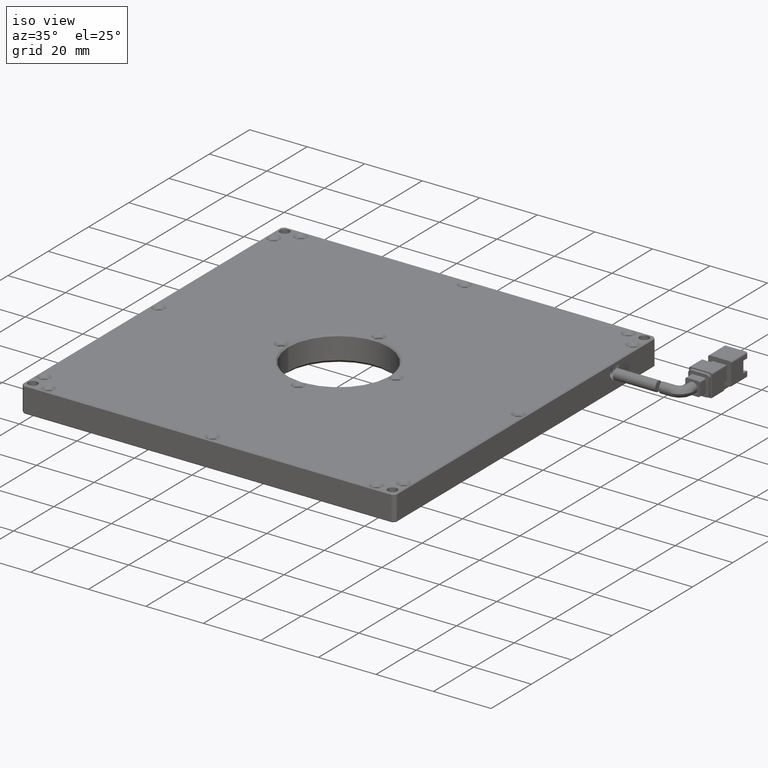
[diagram: clean part render]
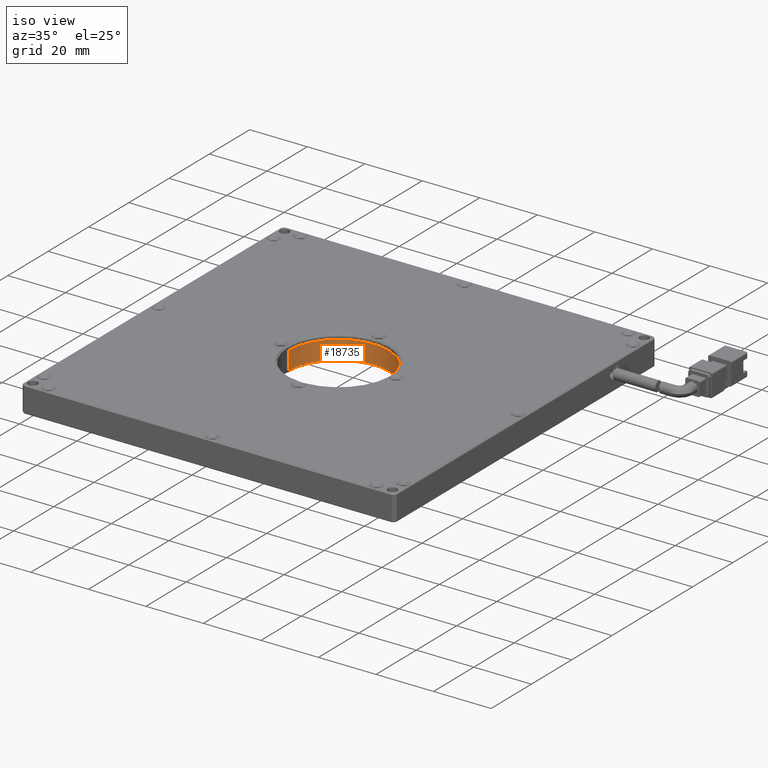
[diagram: same view with one face highlighted and labeled with its STEP entity id]
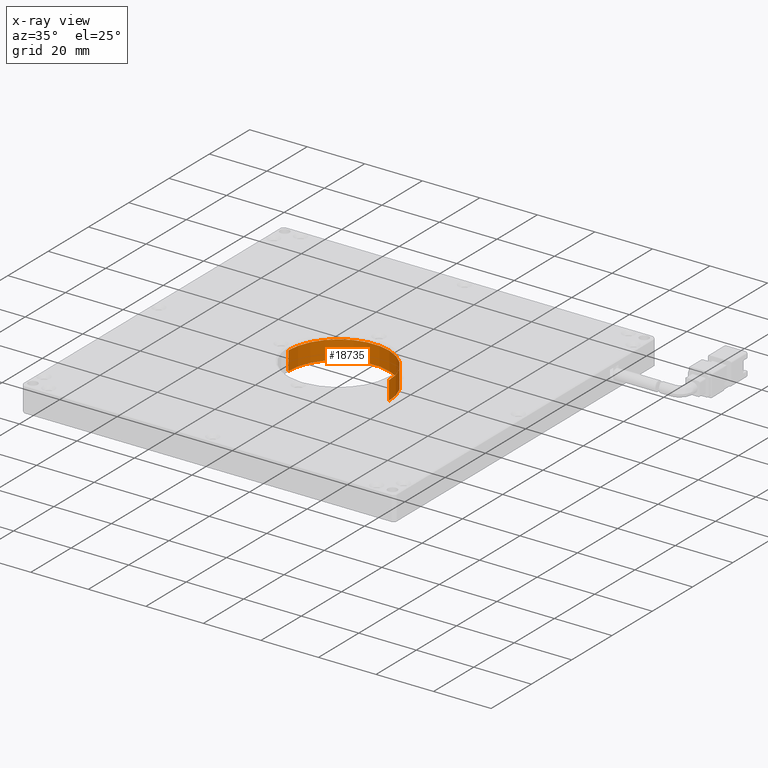
[diagram: x-ray of the same camera — body ghosted, the highlighted face saturated]
A machine part, iso view. The second image highlights one B-rep face of the part: STEP entity #18735.
The next image is the same camera in x-ray: the body ghosted, the highlighted face saturated — about 0% of this face is hidden behind the body in this view.
In plain terms, the highlighted cylindrical surface (partial cylindrical patch) has radius 17.5 mm, axis along (0, 0, -1).
Its self-contained STEP definition (entity closure, byte-faithful):
#248 = VECTOR ( 'NONE', #4479, 1000.000000000000000 ) ;
#462 = ORIENTED_EDGE ( 'NONE', *, *, #6362, .T. ) ;
#505 = ORIENTED_EDGE ( 'NONE', *, *, #4116, .F. ) ;
#855 = EDGE_CURVE ( 'NONE', #1907, #9894, #14085, .T. ) ;
#1334 = CARTESIAN_POINT ( 'NONE',  ( 26.12907407407412200, 24.05944444444444500, -1.999999999999994900 ) ) ;
#1558 = ORIENTED_EDGE ( 'NONE', *, *, #3909, .F. ) ;
#1907 = VERTEX_POINT ( 'NONE', #19612 ) ;
#1979 = VERTEX_POINT ( 'NONE', #11802 ) ;
#3909 = EDGE_CURVE ( 'NONE', #1907, #9175, #5656, .T. ) ;
#4116 = EDGE_CURVE ( 'NONE', #9175, #1979, #13734, .T. ) ;
#4479 = DIRECTION ( 'NONE',  ( 0.0000000000000000000, 0.0000000000000000000, -1.000000000000000000 ) ) ;
#4529 = DIRECTION ( 'NONE',  ( -1.000000000000000000, -1.982541115402064900E-016, 0.0000000000000000000 ) ) ;
#5656 = CIRCLE ( 'NONE', #16849, 17.50000000000000400 ) ;
#6225 = DIRECTION ( 'NONE',  ( -1.000000000000000000, -1.982541115402064900E-016, 0.0000000000000000000 ) ) ;
#6362 = EDGE_CURVE ( 'NONE', #9894, #1979, #19746, .T. ) ;
#9175 = VERTEX_POINT ( 'NONE', #14097 ) ;
#9244 = VECTOR ( 'NONE', #12990, 1000.000000000000000 ) ;
#9345 = DIRECTION ( 'NONE',  ( 0.0000000000000000000, 0.0000000000000000000, -1.000000000000000000 ) ) ;
#9894 = VERTEX_POINT ( 'NONE', #14884 ) ;
#10277 = DIRECTION ( 'NONE',  ( 0.0000000000000000000, 0.0000000000000000000, -1.000000000000000000 ) ) ;
#11775 = ORIENTED_EDGE ( 'NONE', *, *, #855, .T. ) ;
#11802 = CARTESIAN_POINT ( 'NONE',  ( 43.62907407407412600, 24.05944444444444800, -1.999999999999994900 ) ) ;
#12438 = CYLINDRICAL_SURFACE ( 'NONE', #18656, 17.50000000000000400 ) ;
#12990 = DIRECTION ( 'NONE',  ( 0.0000000000000000000, 0.0000000000000000000, -1.000000000000000000 ) ) ;
#13062 = CARTESIAN_POINT ( 'NONE',  ( 8.629074074074115000, 24.05944444444444100, -61.53117956449462900 ) ) ;
#13334 = DIRECTION ( 'NONE',  ( -1.000000000000000000, -1.982541115402064900E-016, 0.0000000000000000000 ) ) ;
#13491 = AXIS2_PLACEMENT_3D ( 'NONE', #1334, #9345, #4529 ) ;
#13656 = CARTESIAN_POINT ( 'NONE',  ( 43.62907407407412600, 24.05944444444444800, -61.53117956449462900 ) ) ;
#13734 = LINE ( 'NONE', #13656, #248 ) ;
#13907 = FACE_OUTER_BOUND ( 'NONE', #17749, .T. ) ;
#14085 = LINE ( 'NONE', #13062, #9244 ) ;
#14097 = CARTESIAN_POINT ( 'NONE',  ( 43.62907407407412600, 24.05944444444444800, 4.499999999999997300 ) ) ;
#14884 = CARTESIAN_POINT ( 'NONE',  ( 8.629074074074115000, 24.05944444444444100, -1.999999999999994900 ) ) ;
#16849 = AXIS2_PLACEMENT_3D ( 'NONE', #19615, #10277, #13334 ) ;
#17749 = EDGE_LOOP ( 'NONE', ( #505, #1558, #11775, #462 ) ) ;
#18656 = AXIS2_PLACEMENT_3D ( 'NONE', #20311, #20186, #6225 ) ;
#18735 = ADVANCED_FACE ( 'NONE', ( #13907 ), #12438, .F. ) ;
#19612 = CARTESIAN_POINT ( 'NONE',  ( 8.629074074074115000, 24.05944444444444100, 4.499999999999997300 ) ) ;
#19615 = CARTESIAN_POINT ( 'NONE',  ( 26.12907407407412200, 24.05944444444444500, 4.499999999999997300 ) ) ;
#19746 = CIRCLE ( 'NONE', #13491, 17.50000000000000400 ) ;
#20186 = DIRECTION ( 'NONE',  ( 0.0000000000000000000, 0.0000000000000000000, -1.000000000000000000 ) ) ;
#20311 = CARTESIAN_POINT ( 'NONE',  ( 26.12907407407412200, 24.05944444444444500, -61.53117956449462900 ) ) ;